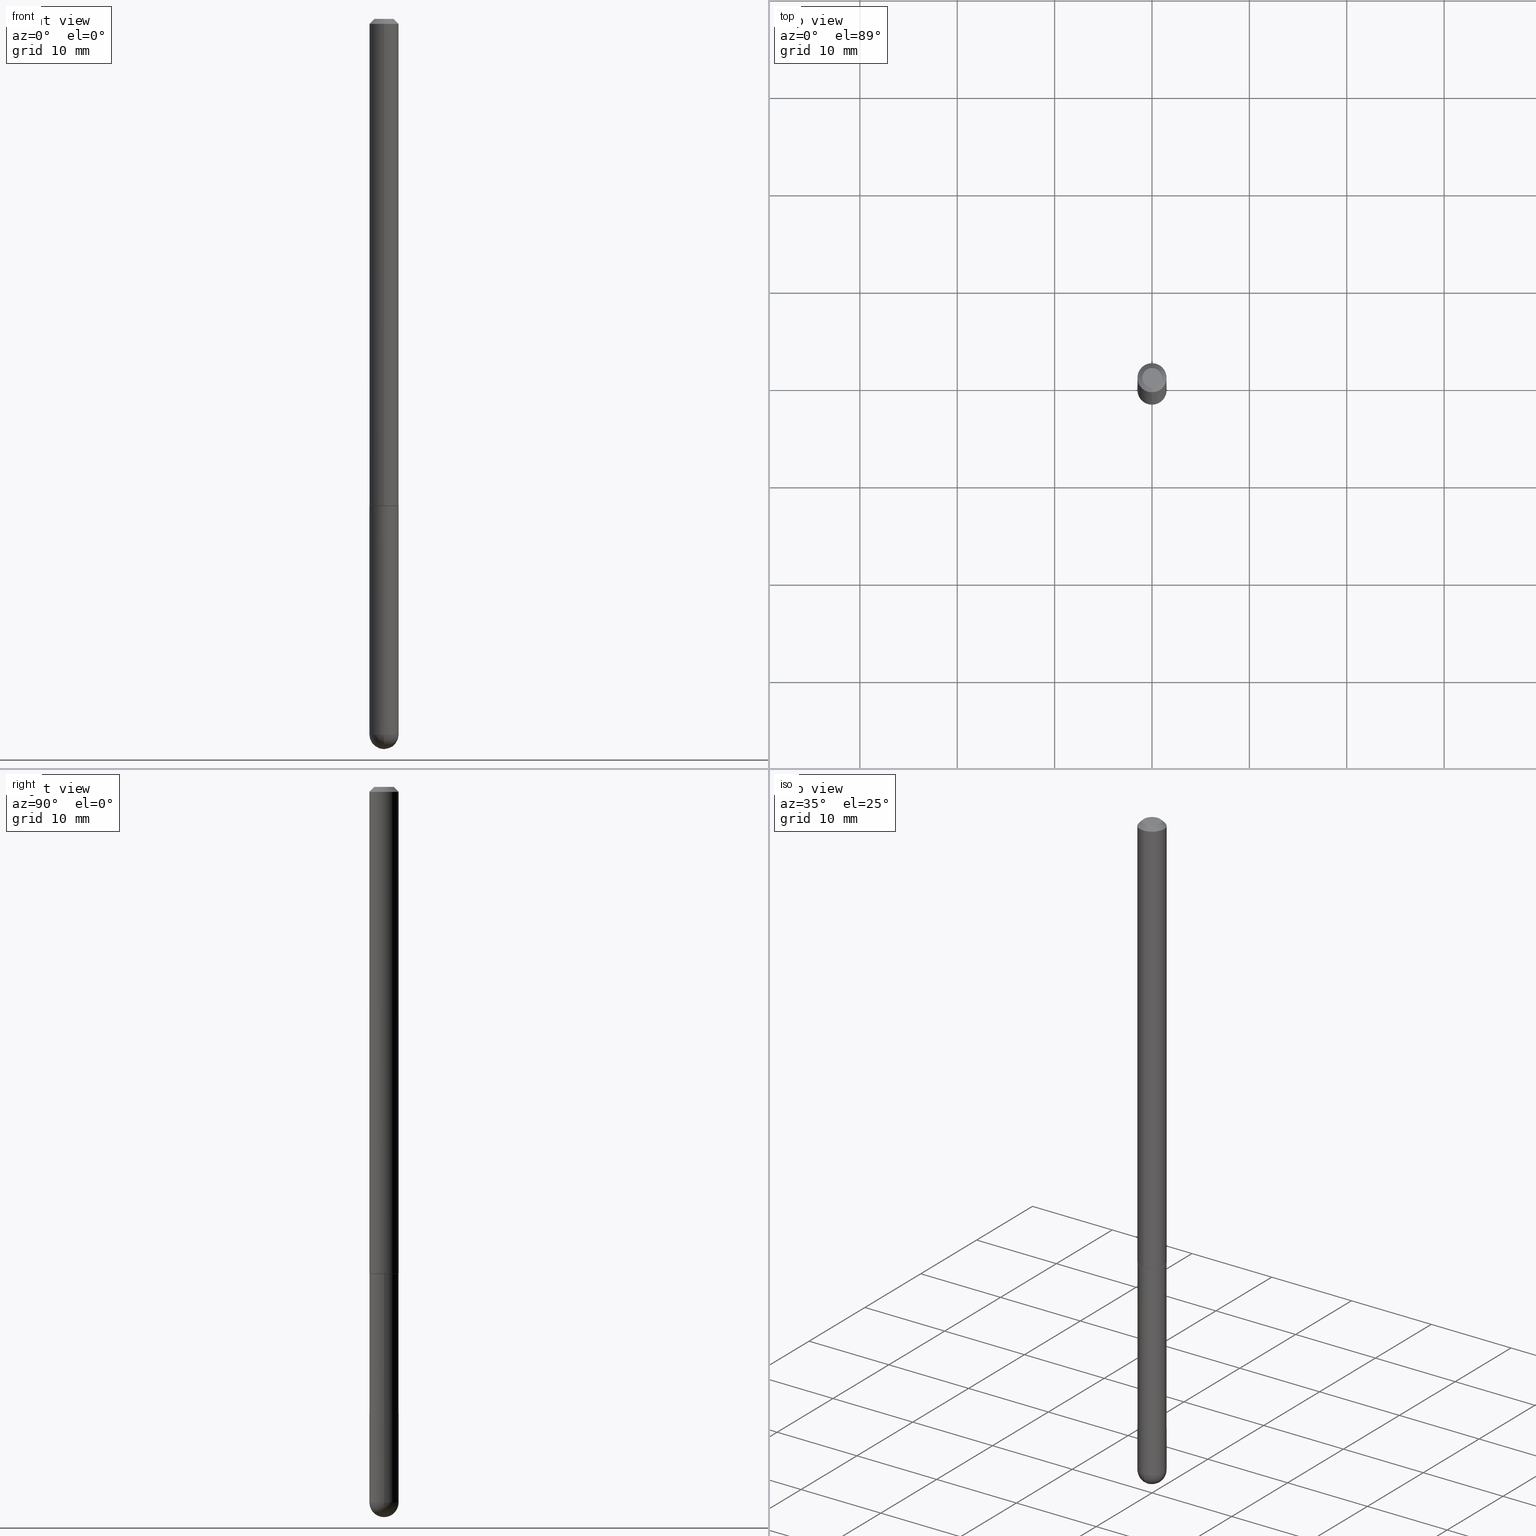
[diagram: canonical four-view strip — front | top / right | iso, engineering-drawing reading convention]
A machine part, canonical four-view strip (front | top / right | iso — engineering-drawing reading convention). The complete STEP part file that produces these views, byte-faithful:
ISO-10303-21;
HEADER;
FILE_DESCRIPTION (( 'STEP AP203' ),
    '1' );
FILE_NAME ('49609.STEP',
    '2024-04-10T12:30:11',
    ( '' ),
    ( '' ),
    'SwSTEP 2.0',
    'SolidWorks 2023',
    '' );
FILE_SCHEMA (( 'CONFIG_CONTROL_DESIGN' ));
ENDSEC;

DATA;
#1 = CC_DESIGN_PERSON_AND_ORGANIZATION_ASSIGNMENT ( #150, #154, ( #44 ) ) ;
#2 = DIRECTION ( 'NONE',  ( -2.452606242276133797E-29, 3.481260124123203654E-15, 1.000000000000000000 ) ) ;
#3 = ORIENTED_EDGE ( 'NONE', *, *, #236, .F. ) ;
#4 = VERTEX_POINT ( 'NONE', #366 ) ;
#5 = ORIENTED_EDGE ( 'NONE', *, *, #17, .F. ) ;
#6 = APPROVAL ( #58, 'UNSPECIFIED' ) ;
#7 = VERTEX_POINT ( 'NONE', #138 ) ;
#8 = CARTESIAN_POINT ( 'NONE',  ( 0.05905000000000001914, -4.123439461173741806E-16, 2.879382386107500921E-30 ) ) ;
#9 = CARTESIAN_POINT ( 'NONE',  ( -4.051124067684085231E-16, -0.05905000000000008159, -0.01999999999999986511 ) ) ;
#10 = EDGE_LOOP ( 'NONE', ( #397, #32, #3, #331 ) ) ;
#11 = PRODUCT ( '49609', '49609', '', ( #110 ) ) ;
#12 = EDGE_CURVE ( 'NONE', #98, #257, #391, .T. ) ;
#13 = CARTESIAN_POINT ( 'NONE',  ( 4.160227717875875531E-16, 0.05804999999999314181, -1.968500000000000139 ) ) ;
#14 = AXIS2_PLACEMENT_3D ( 'NONE', #289, #96, #93 ) ;
#15 = EDGE_LOOP ( 'NONE', ( #319, #223, #208, #174, #359 ) ) ;
#16 = CYLINDRICAL_SURFACE ( 'NONE', #264, 0.05905000000000001914 ) ;
#17 = EDGE_CURVE ( 'NONE', #402, #337, #378, .T. ) ;
#18 = AXIS2_PLACEMENT_3D ( 'NONE', #158, #252, #136 ) ;
#19 = EDGE_LOOP ( 'NONE', ( #335, #200, #373, #134 ) ) ;
#20 = CARTESIAN_POINT ( 'NONE',  ( 4.905212484552284025E-31, -6.962520248246431022E-17, -0.02000000000000006981 ) ) ;
#21 = PRODUCT_DEFINITION ( 'UNKNOWN', '', #44, #355 ) ;
#22 = ORIENTED_EDGE ( 'NONE', *, *, #192, .F. ) ;
#23 = DATE_TIME_ROLE ( 'creation_date' ) ;
#24 = FACE_OUTER_BOUND ( 'NONE', #193, .T. ) ;
#25 = PERSON_AND_ORGANIZATION ( #84, #334 ) ;
#26 = SPHERICAL_SURFACE ( 'NONE', #258, 0.05905000000000025506 ) ;
#27 = ADVANCED_FACE ( 'NONE', ( #188 ), #26, .T. ) ;
#28 =( NAMED_UNIT ( * ) PLANE_ANGLE_UNIT ( ) SI_UNIT ( $, .RADIAN. ) );
#29 = DIRECTION ( 'NONE',  ( 6.982962677686266711E-15, 1.000000000000000000, 0.000000000000000000 ) ) ;
#30 = APPROVAL_DATE_TIME ( #114, #164 ) ;
#31 = DIRECTION ( 'NONE',  ( 1.000000000000000000, -6.982962677686266711E-15, 4.876176775795935793E-29 ) ) ;
#32 = ORIENTED_EDGE ( 'NONE', *, *, #354, .T. ) ;
#33 = CIRCLE ( 'NONE', #56, 0.05905000000000001914 ) ;
#34 = DIRECTION ( 'NONE',  ( -6.982962677686265922E-15, -1.000000000000000000, 4.706025828879006993E-15 ) ) ;
#35 = EDGE_LOOP ( 'NONE', ( #22, #210, #104, #393 ) ) ;
#36 = EDGE_LOOP ( 'NONE', ( #184, #121 ) ) ;
#37 = EDGE_CURVE ( 'NONE', #291, #337, #111, .T. ) ;
#38 = DIRECTION ( 'NONE',  ( 2.438088387897960049E-29, -3.491481338843145188E-15, -1.000000000000000000 ) ) ;
#39 = DIRECTION ( 'NONE',  ( -6.982962677686265922E-15, -1.000000000000000000, 4.706025828879006993E-15 ) ) ;
#40 = ORIENTED_EDGE ( 'NONE', *, *, #261, .T. ) ;
#41 = AXIS2_PLACEMENT_3D ( 'NONE', #332, #199, #103 ) ;
#42 = DIRECTION ( 'NONE',  ( 5.024295867788404755E-15, 0.7071067811865981989, 0.7071067811864968355 ) ) ;
#43 = ORIENTED_EDGE ( 'NONE', *, *, #203, .F. ) ;
#44 = PRODUCT_DEFINITION_FORMATION_WITH_SPECIFIED_SOURCE ( 'ANY', '', #11, .NOT_KNOWN. ) ;
#45 = LINE ( 'NONE', #295, #207 ) ;
#46 = DIRECTION ( 'NONE',  ( -2.445468806185136597E-29, 3.491481338843145583E-15, 1.000000000000000000 ) ) ;
#47 = PLANE ( 'NONE',  #86 ) ;
#48 = ADVANCED_FACE ( 'NONE', ( #24 ), #234, .T. ) ;
#49 = CC_DESIGN_APPROVAL ( #164, ( #44 ) ) ;
#50 = ORIENTED_EDGE ( 'NONE', *, *, #64, .T. ) ;
#51 = AXIS2_PLACEMENT_3D ( 'NONE', #168, #307, #266 ) ;
#52 = AXIS2_PLACEMENT_3D ( 'NONE', #171, #294, #137 ) ;
#53 = ORIENTED_EDGE ( 'NONE', *, *, #80, .T. ) ;
#54 = PERSON_AND_ORGANIZATION ( #84, #334 ) ;
#55 = ADVANCED_FACE ( 'NONE', ( #348 ), #190, .T. ) ;
#56 = AXIS2_PLACEMENT_3D ( 'NONE', #379, #211, #221 ) ;
#57 = EDGE_CURVE ( 'NONE', #291, #201, #127, .T. ) ;
#58 = APPROVAL_STATUS ( 'not_yet_approved' ) ;
#59 = SHAPE_DEFINITION_REPRESENTATION ( #292, #218 ) ;
#60 = CIRCLE ( 'NONE', #18, 0.05905000000000001914 ) ;
#61 = CARTESIAN_POINT ( 'NONE',  ( -8.277291361087481061E-46, 1.174889138517452208E-31, 3.374896148598955375E-17 ) ) ;
#62 = EDGE_LOOP ( 'NONE', ( #43, #250, #254, #286 ) ) ;
#63 = CARTESIAN_POINT ( 'NONE',  ( 2.726846925636483731E-16, 0.03904999999999995974, -1.190687271040161693E-16 ) ) ;
#64 = EDGE_CURVE ( 'NONE', #224, #321, #77, .T. ) ;
#65 = AXIS2_PLACEMENT_3D ( 'NONE', #97, #109, #131 ) ;
#66 = CIRCLE ( 'NONE', #364, 0.05905000000000025506 ) ;
#67 = CC_DESIGN_PERSON_AND_ORGANIZATION_ASSIGNMENT ( #25, #73, ( #21 ) ) ;
#68 = CARTESIAN_POINT ( 'NONE',  ( 4.813905344975440714E-29, -6.872981015512730918E-15, -1.968499999999999694 ) ) ;
#69 = EDGE_CURVE ( 'NONE', #89, #337, #209, .T. ) ;
#70 = FACE_OUTER_BOUND ( 'NONE', #36, .T. ) ;
#71 = PERSON_AND_ORGANIZATION ( #84, #334 ) ;
#72 = ORIENTED_EDGE ( 'NONE', *, *, #236, .T. ) ;
#73 = PERSON_AND_ORGANIZATION_ROLE ( 'creator' ) ;
#74 = LOCAL_TIME ( 8, 30, 11.00000000000000000, #238 ) ;
#75 = DIRECTION ( 'NONE',  ( -6.982962677686265922E-15, -1.000000000000000000, 3.481260124123203654E-15 ) ) ;
#76 = VERTEX_POINT ( 'NONE', #237 ) ;
#77 = LINE ( 'NONE', #147, #340 ) ;
#78 = ORIENTED_EDGE ( 'NONE', *, *, #261, .F. ) ;
#79 = DIRECTION ( 'NONE',  ( -2.452606242276133797E-29, 3.481260124123203654E-15, 1.000000000000000000 ) ) ;
#80 = EDGE_CURVE ( 'NONE', #257, #98, #33, .T. ) ;
#81 = DATE_TIME_ROLE ( 'classification_date' ) ;
#82 = CONICAL_SURFACE ( 'NONE', #290, 0.05804999999999999744, 0.7853981633975165577 ) ;
#83 = EDGE_CURVE ( 'NONE', #321, #89, #356, .T. ) ;
#84 = PERSON ( 'UNSPECIFIED', 'UNSPECIFIED', 'UNSPECIFIED', ('UNSPECIFIED'), ('UNSPECIFIED'), ('UNSPECIFIED') ) ;
#85 = APPLICATION_PROTOCOL_DEFINITION ( 'international standard', 'config_control_design', 1994, #177 ) ;
#86 = AXIS2_PLACEMENT_3D ( 'NONE', #63, #166, #333 ) ;
#87 = CC_DESIGN_DATE_AND_TIME_ASSIGNMENT ( #268, #23, ( #21 ) ) ;
#88 = DIRECTION ( 'NONE',  ( -2.452606242276133797E-29, 3.481260124123203654E-15, 1.000000000000000000 ) ) ;
#89 = VERTEX_POINT ( 'NONE', #156 ) ;
#90 = CIRCLE ( 'NONE', #281, 0.03904999999999995974 ) ;
#91 = CARTESIAN_POINT ( 'NONE',  ( 0.000000000000000000, 0.000000000000000000, 0.000000000000000000 ) ) ;
#92 = EDGE_LOOP ( 'NONE', ( #274, #126 ) ) ;
#93 = DIRECTION ( 'NONE',  ( -6.982962677686265922E-15, -1.000000000000000000, 3.481260124123204048E-15 ) ) ;
#94 = EDGE_CURVE ( 'NONE', #224, #172, #108, .T. ) ;
#95 = ORIENTED_EDGE ( 'NONE', *, *, #354, .F. ) ;
#96 = DIRECTION ( 'NONE',  ( -2.452606242276133237E-29, 3.481260124123204048E-15, 1.000000000000000000 ) ) ;
#97 = CARTESIAN_POINT ( 'NONE',  ( 4.905212484552284025E-31, -6.962520248246431022E-17, -0.02000000000000006981 ) ) ;
#98 = VERTEX_POINT ( 'NONE', #133 ) ;
#99 = CIRCLE ( 'NONE', #157, 0.05905000000000020649 ) ;
#100 = AXIS2_PLACEMENT_3D ( 'NONE', #409, #270, #308 ) ;
#101 = FACE_OUTER_BOUND ( 'NONE', #376, .T. ) ;
#102 = CARTESIAN_POINT ( 'NONE',  ( 7.076575357898237682E-29, -1.010347412427735067E-14, -2.893749999999999822 ) ) ;
#103 = DIRECTION ( 'NONE',  ( 1.000000000000000000, -6.982962677686270655E-15, 0.000000000000000000 ) ) ;
#104 = ORIENTED_EDGE ( 'NONE', *, *, #37, .T. ) ;
#105 = LOCAL_TIME ( 8, 30, 11.00000000000000000, #407 ) ;
#106 = LINE ( 'NONE', #370, #180 ) ;
#107 = EDGE_CURVE ( 'NONE', #337, #402, #220, .T. ) ;
#108 = CIRCLE ( 'NONE', #135, 0.05804999999999999744 ) ;
#109 = DIRECTION ( 'NONE',  ( -2.452606242276133797E-29, 3.481260124123203654E-15, 1.000000000000000000 ) ) ;
#110 = MECHANICAL_CONTEXT ( 'NONE', #197, 'mechanical' ) ;
#111 = LINE ( 'NONE', #214, #112 ) ;
#112 = VECTOR ( 'NONE', #303, 39.37007874015748143 ) ;
#113 = EDGE_CURVE ( 'NONE', #185, #260, #235, .T. ) ;
#114 = DATE_AND_TIME ( #275, #344 ) ;
#115 = DIRECTION ( 'NONE',  ( -1.000000000000000000, 7.105427357601001070E-15, -4.926315508542082329E-29 ) ) ;
#116 = APPROVAL_ROLE ( '' ) ;
#117 = COORDINATED_UNIVERSAL_TIME_OFFSET ( 5, 0, .BEHIND. ) ;
#118 = CONICAL_SURFACE ( 'NONE', #363, 0.05804999999999999744, 0.7853981633975165577 ) ;
#119 = AXIS2_PLACEMENT_3D ( 'NONE', #212, #272, #276 ) ;
#120 = MANIFOLD_SOLID_BREP ( 'Body-Move/Copy2[1]', #226 ) ;
#121 = ORIENTED_EDGE ( 'NONE', *, *, #203, .T. ) ;
#122 = DIRECTION ( 'NONE',  ( -6.982962677686265922E-15, -1.000000000000000000, 4.706025828879006993E-15 ) ) ;
#123 = ORIENTED_EDGE ( 'NONE', *, *, #143, .F. ) ;
#124 = CC_DESIGN_SECURITY_CLASSIFICATION ( #196, ( #44 ) ) ;
#125 = ORIENTED_EDGE ( 'NONE', *, *, #288, .T. ) ;
#126 = ORIENTED_EDGE ( 'NONE', *, *, #381, .F. ) ;
#127 = CIRCLE ( 'NONE', #372, 0.03904999999999995974 ) ;
#128 = EDGE_CURVE ( 'NONE', #4, #185, #215, .T. ) ;
#129 = CARTESIAN_POINT ( 'NONE',  ( 4.827955387920569283E-29, -6.852860554336525173E-15, -1.968499999999999694 ) ) ;
#130 = CARTESIAN_POINT ( 'NONE',  ( -3.365074267906932410E-16, -0.03904999999999995974, 1.696921693330005092E-16 ) ) ;
#131 = DIRECTION ( 'NONE',  ( -6.982962677686265922E-15, -1.000000000000000000, 3.469747663417776213E-15 ) ) ;
#132 = CC_DESIGN_PERSON_AND_ORGANIZATION_ASSIGNMENT ( #347, #280, ( #44 ) ) ;
#133 = CARTESIAN_POINT ( 'NONE',  ( 0.05905000000000001914, -7.285324961630105839E-15, -1.968499999999999694 ) ) ;
#134 = ORIENTED_EDGE ( 'NONE', *, *, #64, .F. ) ;
#135 = AXIS2_PLACEMENT_3D ( 'NONE', #247, #323, #39 ) ;
#136 = DIRECTION ( 'NONE',  ( 1.000000000000000000, -6.982962677686270655E-15, 0.000000000000000000 ) ) ;
#137 = DIRECTION ( 'NONE',  ( 6.982962677686265922E-15, 1.000000000000000000, -3.469747663417776213E-15 ) ) ;
#138 = CARTESIAN_POINT ( 'NONE',  ( 6.892385391458386628E-29, -1.078021269580160693E-14, -2.952799999999999869 ) ) ;
#139 = PRODUCT_RELATED_PRODUCT_CATEGORY ( 'detail', '', ( #11 ) ) ;
#140 = FACE_OUTER_BOUND ( 'NONE', #92, .T. ) ;
#141 = APPLICATION_PROTOCOL_DEFINITION ( 'international standard', 'config_control_design', 1994, #197 ) ;
#142 = DIRECTION ( 'NONE',  ( -2.452606242276133797E-29, 3.481260124123203654E-15, 1.000000000000000000 ) ) ;
#143 = EDGE_CURVE ( 'NONE', #76, #257, #45, .T. ) ;
#144 = VECTOR ( 'NONE', #42, 39.37007874015748143 ) ;
#145 = CARTESIAN_POINT ( 'NONE',  ( 6.745455579984352556E-29, -1.057765649241740097E-14, -2.893749999999999822 ) ) ;
#146 = DIRECTION ( 'NONE',  ( 2.452606242276133797E-29, -3.481260124123203654E-15, -1.000000000000000000 ) ) ;
#147 = CARTESIAN_POINT ( 'NONE',  ( -4.053609834396394049E-16, -0.05805000000000685306, -1.968499999999999472 ) ) ;
#148 = CLOSED_SHELL ( 'NONE', ( #390, #325, #318, #55, #241, #243, #161, #160 ) ) ;
#149 = COORDINATED_UNIVERSAL_TIME_OFFSET ( 5, 0, .BEHIND. ) ;
#150 = PERSON_AND_ORGANIZATION ( #84, #334 ) ;
#151 = CARTESIAN_POINT ( 'NONE',  ( 6.745455579984352556E-29, -1.057765649241740097E-14, -2.893749999999999822 ) ) ;
#152 = LOCAL_TIME ( 8, 30, 11.00000000000000000, #179 ) ;
#153 = FACE_OUTER_BOUND ( 'NONE', #296, .T. ) ;
#154 = PERSON_AND_ORGANIZATION_ROLE ( 'design_supplier' ) ;
#155 = CARTESIAN_POINT ( 'NONE',  ( 4.827955387920569283E-29, -6.852860554336525173E-15, -1.968499999999999694 ) ) ;
#156 = CARTESIAN_POINT ( 'NONE',  ( 4.195754854663646379E-16, 0.05904999999999335780, -1.967500000000000027 ) ) ;
#157 = AXIS2_PLACEMENT_3D ( 'NONE', #198, #165, #329 ) ;
#158 = CARTESIAN_POINT ( 'NONE',  ( 7.076575357898237682E-29, -1.010347412427735067E-14, -2.893749999999999822 ) ) ;
#159 = LOCAL_TIME ( 8, 30, 11.00000000000000000, #117 ) ;
#160 = ADVANCED_FACE ( 'NONE', ( #70 ), #47, .F. ) ;
#161 = ADVANCED_FACE ( 'NONE', ( #140 ), #305, .F. ) ;
#162 = FACE_OUTER_BOUND ( 'NONE', #62, .T. ) ;
#163 = DIRECTION ( 'NONE',  ( -4.851104656540958753E-15, -0.7071067811865492381, -0.7071067811865457964 ) ) ;
#164 = APPROVAL ( #316, 'UNSPECIFIED' ) ;
#165 = DIRECTION ( 'NONE',  ( -2.452606242276133797E-29, 3.481260124123203654E-15, 1.000000000000000000 ) ) ;
#166 = DIRECTION ( 'NONE',  ( 2.452606242276133237E-29, -3.481260124123204048E-15, -1.000000000000000000 ) ) ;
#167 = LINE ( 'NONE', #8, #173 ) ;
#168 = CARTESIAN_POINT ( 'NONE',  ( 7.076575357898237682E-29, -1.010347412427735067E-14, -2.893749999999999822 ) ) ;
#169 = AXIS2_PLACEMENT_3D ( 'NONE', #187, #336, #405 ) ;
#170 = CARTESIAN_POINT ( 'NONE',  ( 4.124700581087863588E-16, 0.05804999999999314181, -1.968500000000000139 ) ) ;
#171 = CARTESIAN_POINT ( 'NONE',  ( 4.905212484552284025E-31, -6.962520248246431022E-17, -0.02000000000000006981 ) ) ;
#172 = VERTEX_POINT ( 'NONE', #13 ) ;
#173 = VECTOR ( 'NONE', #256, 39.37007874015748143 ) ;
#174 = ORIENTED_EDGE ( 'NONE', *, *, #288, .F. ) ;
#175 = EDGE_LOOP ( 'NONE', ( #349, #251, #50, #229 ) ) ;
#176 = EDGE_CURVE ( 'NONE', #172, #89, #361, .T. ) ;
#177 = APPLICATION_CONTEXT ( 'configuration controlled 3d designs of mechanical parts and assemblies' ) ;
#178 = CARTESIAN_POINT ( 'NONE',  ( 0.000000000000000000, 0.000000000000000000, 0.000000000000000000 ) ) ;
#179 = COORDINATED_UNIVERSAL_TIME_OFFSET ( 5, 0, .BEHIND. ) ;
#180 = VECTOR ( 'NONE', #285, 39.37007874015748143 ) ;
#181 = AXIS2_PLACEMENT_3D ( 'NONE', #151, #384, #29 ) ;
#182 =( CONVERSION_BASED_UNIT ( 'INCH', #273 ) LENGTH_UNIT ( ) NAMED_UNIT ( #225 ) );
#183 = DIRECTION ( 'NONE',  ( 6.982962677686265922E-15, 1.000000000000000000, 0.000000000000000000 ) ) ;
#184 = ORIENTED_EDGE ( 'NONE', *, *, #57, .T. ) ;
#185 = VERTEX_POINT ( 'NONE', #320 ) ;
#186 = PERSON_AND_ORGANIZATION ( #84, #334 ) ;
#187 = CARTESIAN_POINT ( 'NONE',  ( 0.000000000000000000, 0.000000000000000000, 0.000000000000000000 ) ) ;
#188 = FACE_OUTER_BOUND ( 'NONE', #10, .T. ) ;
#189 = DIRECTION ( 'NONE',  ( -2.445468806185136597E-29, 3.491481338843145583E-15, 1.000000000000000000 ) ) ;
#190 = CONICAL_SURFACE ( 'NONE', #326, 0.05905000000000001914, 0.7853981633974472798 ) ;
#191 = CYLINDRICAL_SURFACE ( 'NONE', #119, 0.05905000000000010935 ) ;
#192 = EDGE_CURVE ( 'NONE', #201, #402, #362, .T. ) ;
#193 = EDGE_LOOP ( 'NONE', ( #95, #310, #343, #352 ) ) ;
#194 = EDGE_LOOP ( 'NONE', ( #324, #222, #40, #389 ) ) ;
#195 = CIRCLE ( 'NONE', #248, 0.05804999999999999744 ) ;
#196 = SECURITY_CLASSIFICATION ( '', '', #353 ) ;
#197 = APPLICATION_CONTEXT ( 'configuration controlled 3d designs of mechanical parts and assemblies' ) ;
#198 = CARTESIAN_POINT ( 'NONE',  ( 4.825502781678292621E-29, -6.849379294212400691E-15, -1.967499999999999805 ) ) ;
#199 = DIRECTION ( 'NONE',  ( -2.445468806185136597E-29, 3.491481338843145583E-15, 1.000000000000000000 ) ) ;
#200 = ORIENTED_EDGE ( 'NONE', *, *, #176, .T. ) ;
#201 = VERTEX_POINT ( 'NONE', #130 ) ;
#202 = CALENDAR_DATE ( 2024, 10, 4 ) ;
#203 = EDGE_CURVE ( 'NONE', #201, #291, #90, .T. ) ;
#204 = ORIENTED_EDGE ( 'NONE', *, *, #12, .T. ) ;
#205 = CARTESIAN_POINT ( 'NONE',  ( 6.745455579984352556E-29, -1.057765649241740097E-14, -2.893749999999999822 ) ) ;
#206 = FACE_OUTER_BOUND ( 'NONE', #175, .T. ) ;
#207 = VECTOR ( 'NONE', #369, 39.37007874015748143 ) ;
#208 = ORIENTED_EDGE ( 'NONE', *, *, #12, .F. ) ;
#209 = LINE ( 'NONE', #342, #231 ) ;
#210 = ORIENTED_EDGE ( 'NONE', *, *, #57, .F. ) ;
#211 = DIRECTION ( 'NONE',  ( -2.445468806185136597E-29, 3.491481338843145583E-15, 1.000000000000000000 ) ) ;
#212 = CARTESIAN_POINT ( 'NONE',  ( 0.000000000000000000, 0.000000000000000000, 0.000000000000000000 ) ) ;
#213 = PERSON_AND_ORGANIZATION ( #84, #334 ) ;
#214 = CARTESIAN_POINT ( 'NONE',  ( 4.123439461173745750E-16, 0.05904999999999994975, -0.02000000000000027450 ) ) ;
#215 = CIRCLE ( 'NONE', #41, 0.05905000000000001914 ) ;
#216 = APPROVAL_ROLE ( '' ) ;
#217 = ADVANCED_FACE ( 'NONE', ( #101 ), #228, .F. ) ;
#218 = ADVANCED_BREP_SHAPE_REPRESENTATION ( '49609', ( #120, #265, #169 ), #368 ) ;
#219 = DIRECTION ( 'NONE',  ( -6.982962677686265922E-15, -1.000000000000000000, 4.626330217890353559E-15 ) ) ;
#220 = CIRCLE ( 'NONE', #65, 0.05905000000000001914 ) ;
#221 = DIRECTION ( 'NONE',  ( 1.000000000000000000, -6.982962677686270655E-15, 0.000000000000000000 ) ) ;
#222 = ORIENTED_EDGE ( 'NONE', *, *, #302, .T. ) ;
#223 = ORIENTED_EDGE ( 'NONE', *, *, #143, .T. ) ;
#224 = VERTEX_POINT ( 'NONE', #249 ) ;
#225 = DIMENSIONAL_EXPONENTS ( 1.000000000000000000, 0.000000000000000000, 0.000000000000000000, 0.000000000000000000, 0.000000000000000000, 0.000000000000000000, 0.000000000000000000 ) ;
#226 = CLOSED_SHELL ( 'NONE', ( #375, #27, #48, #217, #374 ) ) ;
#227 = APPROVAL ( #277, 'UNSPECIFIED' ) ;
#228 = PLANE ( 'NONE',  #385 ) ;
#229 = ORIENTED_EDGE ( 'NONE', *, *, #302, .F. ) ;
#230 = CARTESIAN_POINT ( 'NONE',  ( 4.123439461174440441E-16, 0.05904999999998979815, -2.893749999999999822 ) ) ;
#231 = VECTOR ( 'NONE', #404, 39.37007874015748143 ) ;
#232 = DIRECTION ( 'NONE',  ( -6.982962677686265922E-15, -1.000000000000000000, 4.706025828879006993E-15 ) ) ;
#233 = CC_DESIGN_APPROVAL ( #6, ( #21 ) ) ;
#234 = SPHERICAL_SURFACE ( 'NONE', #312, 0.05905000000000025506 ) ;
#235 = CIRCLE ( 'NONE', #350, 0.05905000000000001914 ) ;
#236 = EDGE_CURVE ( 'NONE', #76, #4, #60, .T. ) ;
#237 = CARTESIAN_POINT ( 'NONE',  ( -0.05905000000000001914, -8.068652084428701697E-15, -2.893749999999999822 ) ) ;
#238 = COORDINATED_UNIVERSAL_TIME_OFFSET ( 5, 0, .BEHIND. ) ;
#239 = DIRECTION ( 'NONE',  ( -7.105427357601001070E-15, -1.000000000000000000, 0.000000000000000000 ) ) ;
#240 =( LENGTH_UNIT ( ) NAMED_UNIT ( * ) SI_UNIT ( $, .METRE. ) );
#241 = ADVANCED_FACE ( 'NONE', ( #259 ), #392, .T. ) ;
#242 =( NAMED_UNIT ( * ) SI_UNIT ( $, .STERADIAN. ) SOLID_ANGLE_UNIT ( ) );
#243 = ADVANCED_FACE ( 'NONE', ( #206 ), #118, .T. ) ;
#244 = AXIS2_PLACEMENT_3D ( 'NONE', #345, #284, #309 ) ;
#245 = CALENDAR_DATE ( 2024, 10, 4 ) ;
#246 = APPROVAL_DATE_TIME ( #408, #6 ) ;
#247 = CARTESIAN_POINT ( 'NONE',  ( 4.827955387920569283E-29, -6.852860554336525173E-15, -1.968499999999999694 ) ) ;
#248 = AXIS2_PLACEMENT_3D ( 'NONE', #155, #282, #34 ) ;
#249 = CARTESIAN_POINT ( 'NONE',  ( -4.053609834396394049E-16, -0.05805000000000685306, -1.968499999999999472 ) ) ;
#250 = ORIENTED_EDGE ( 'NONE', *, *, #192, .T. ) ;
#251 = ORIENTED_EDGE ( 'NONE', *, *, #381, .T. ) ;
#252 = DIRECTION ( 'NONE',  ( -2.445468806185136597E-29, 3.491481338843145583E-15, 1.000000000000000000 ) ) ;
#253 = ORIENTED_EDGE ( 'NONE', *, *, #69, .T. ) ;
#254 = ORIENTED_EDGE ( 'NONE', *, *, #17, .T. ) ;
#255 = DIRECTION ( 'NONE',  ( -6.982962677686265133E-15, -1.000000000000000000, 3.481260124123202865E-15 ) ) ;
#256 = DIRECTION ( 'NONE',  ( -2.445468806185136877E-29, 3.491481338843145188E-15, 1.000000000000000000 ) ) ;
#257 = VERTEX_POINT ( 'NONE', #306 ) ;
#258 = AXIS2_PLACEMENT_3D ( 'NONE', #145, #401, #279 ) ;
#259 = FACE_OUTER_BOUND ( 'NONE', #194, .T. ) ;
#260 = VERTEX_POINT ( 'NONE', #230 ) ;
#261 = EDGE_CURVE ( 'NONE', #321, #402, #106, .T. ) ;
#262 = DIRECTION ( 'NONE',  ( -2.452606242276133797E-29, 3.481260124123203654E-15, 1.000000000000000000 ) ) ;
#263 = EDGE_CURVE ( 'NONE', #260, #76, #410, .T. ) ;
#264 = AXIS2_PLACEMENT_3D ( 'NONE', #91, #189, #31 ) ;
#265 = MANIFOLD_SOLID_BREP ( 'Body-Move/Copy2[2]', #148 ) ;
#266 = DIRECTION ( 'NONE',  ( 1.000000000000000000, -6.982962677686270655E-15, 0.000000000000000000 ) ) ;
#267 = EDGE_LOOP ( 'NONE', ( #283, #253, #5, #78 ) ) ;
#268 = DATE_AND_TIME ( #311, #152 ) ;
#269 = DIRECTION ( 'NONE',  ( 6.982962677686265922E-15, 1.000000000000000000, -3.469747663417776213E-15 ) ) ;
#270 = DIRECTION ( 'NONE',  ( -2.445468806185136597E-29, 3.491481338843145583E-15, 1.000000000000000000 ) ) ;
#271 = DIRECTION ( 'NONE',  ( -4.937700262164884886E-15, -0.7071067811865933139, 0.7071067811865017205 ) ) ;
#272 = DIRECTION ( 'NONE',  ( -2.452606242276133797E-29, 3.481260124123203654E-15, 1.000000000000000000 ) ) ;
#273 = LENGTH_MEASURE_WITH_UNIT ( LENGTH_MEASURE( 0.02539999999999999897 ), #240 );
#274 = ORIENTED_EDGE ( 'NONE', *, *, #94, .F. ) ;
#275 = CALENDAR_DATE ( 2024, 10, 4 ) ;
#276 = DIRECTION ( 'NONE',  ( -6.982962677686265922E-15, -1.000000000000000000, 3.481260124123203654E-15 ) ) ;
#277 = APPROVAL_STATUS ( 'not_yet_approved' ) ;
#278 = FACE_OUTER_BOUND ( 'NONE', #15, .T. ) ;
#279 = DIRECTION ( 'NONE',  ( 6.982962677686265922E-15, 1.000000000000000000, 0.000000000000000000 ) ) ;
#280 = PERSON_AND_ORGANIZATION_ROLE ( 'creator' ) ;
#281 = AXIS2_PLACEMENT_3D ( 'NONE', #61, #327, #255 ) ;
#282 = DIRECTION ( 'NONE',  ( -2.452606242276133797E-29, 3.481260124123203654E-15, 1.000000000000000000 ) ) ;
#283 = ORIENTED_EDGE ( 'NONE', *, *, #83, .T. ) ;
#284 = DIRECTION ( 'NONE',  ( -2.452606242276133797E-29, 3.481260124123203654E-15, 1.000000000000000000 ) ) ;
#285 = DIRECTION ( 'NONE',  ( -2.452606242276134078E-29, 3.481260124123204048E-15, 1.000000000000000000 ) ) ;
#286 = ORIENTED_EDGE ( 'NONE', *, *, #37, .F. ) ;
#287 = AXIS2_PLACEMENT_3D ( 'NONE', #68, #46, #330 ) ;
#288 = EDGE_CURVE ( 'NONE', #185, #98, #167, .T. ) ;
#289 = CARTESIAN_POINT ( 'NONE',  ( 4.827955387920569283E-29, -6.852860554336525173E-15, -1.968499999999999694 ) ) ;
#290 = AXIS2_PLACEMENT_3D ( 'NONE', #129, #2, #122 ) ;
#291 = VERTEX_POINT ( 'NONE', #365 ) ;
#292 = PRODUCT_DEFINITION_SHAPE ( 'NONE', 'NONE',  #21 ) ;
#293 = DIRECTION ( 'NONE',  ( -1.000000000000000000, 6.982962677686265922E-15, -4.876176775795935793E-29 ) ) ;
#294 = DIRECTION ( 'NONE',  ( 2.452606242276133797E-29, -3.481260124123203654E-15, -1.000000000000000000 ) ) ;
#295 = CARTESIAN_POINT ( 'NONE',  ( -0.05905000000000001914, 4.195754854663392958E-16, -2.904631170795522943E-30 ) ) ;
#296 = EDGE_LOOP ( 'NONE', ( #123, #72, #328, #125, #299 ) ) ;
#297 = CC_DESIGN_DATE_AND_TIME_ASSIGNMENT ( #380, #81, ( #196 ) ) ;
#298 = APPROVAL_PERSON_ORGANIZATION ( #213, #6, #216 ) ;
#299 = ORIENTED_EDGE ( 'NONE', *, *, #80, .F. ) ;
#300 = PERSON_AND_ORGANIZATION ( #84, #334 ) ;
#301 = AXIS2_PLACEMENT_3D ( 'NONE', #178, #262, #75 ) ;
#302 = EDGE_CURVE ( 'NONE', #89, #321, #99, .T. ) ;
#303 = DIRECTION ( 'NONE',  ( 4.937700262164542520E-15, 0.7071067811865443531, -0.7071067811865506814 ) ) ;
#304 = CYLINDRICAL_SURFACE ( 'NONE', #100, 0.05905000000000001914 ) ;
#305 = PLANE ( 'NONE',  #14 ) ;
#306 = CARTESIAN_POINT ( 'NONE',  ( -0.05905000000000001914, -8.068652084428701697E-15, -1.968499999999999694 ) ) ;
#307 = DIRECTION ( 'NONE',  ( -2.445468806185136597E-29, 3.491481338843145583E-15, 1.000000000000000000 ) ) ;
#308 = DIRECTION ( 'NONE',  ( 1.000000000000000000, -6.982962677686266711E-15, 4.876176775795935793E-29 ) ) ;
#309 = DIRECTION ( 'NONE',  ( -6.982962677686265922E-15, -1.000000000000000000, 3.469747663417776213E-15 ) ) ;
#310 = ORIENTED_EDGE ( 'NONE', *, *, #360, .T. ) ;
#311 = CALENDAR_DATE ( 2024, 10, 4 ) ;
#312 = AXIS2_PLACEMENT_3D ( 'NONE', #205, #338, #183 ) ;
#313 = APPROVAL_ROLE ( '' ) ;
#314 = CC_DESIGN_PERSON_AND_ORGANIZATION_ASSIGNMENT ( #186, #383, ( #11 ) ) ;
#315 = DATE_AND_TIME ( #245, #159 ) ;
#316 = APPROVAL_STATUS ( 'not_yet_approved' ) ;
#317 = VECTOR ( 'NONE', #163, 39.37007874015748143 ) ;
#318 = ADVANCED_FACE ( 'NONE', ( #162 ), #411, .T. ) ;
#319 = ORIENTED_EDGE ( 'NONE', *, *, #263, .T. ) ;
#320 = CARTESIAN_POINT ( 'NONE',  ( 0.05905000000000001914, -8.900571516012416899E-15, -2.893749999999999822 ) ) ;
#321 = VERTEX_POINT ( 'NONE', #396 ) ;
#322 = CARTESIAN_POINT ( 'NONE',  ( 4.123439461174222518E-16, 0.05904999999999314270, -1.968500000000000139 ) ) ;
#323 = DIRECTION ( 'NONE',  ( -2.452606242276133797E-29, 3.481260124123203654E-15, 1.000000000000000000 ) ) ;
#324 = ORIENTED_EDGE ( 'NONE', *, *, #69, .F. ) ;
#325 = ADVANCED_FACE ( 'NONE', ( #357 ), #191, .T. ) ;
#326 = AXIS2_PLACEMENT_3D ( 'NONE', #20, #146, #269 ) ;
#327 = DIRECTION ( 'NONE',  ( -2.452606242276133797E-29, 3.481260124123203654E-15, 1.000000000000000000 ) ) ;
#328 = ORIENTED_EDGE ( 'NONE', *, *, #128, .T. ) ;
#329 = DIRECTION ( 'NONE',  ( -6.982962677686265922E-15, -1.000000000000000000, 4.626330217890353559E-15 ) ) ;
#330 = DIRECTION ( 'NONE',  ( 1.000000000000000000, -6.982962677686270655E-15, 0.000000000000000000 ) ) ;
#331 = ORIENTED_EDGE ( 'NONE', *, *, #263, .F. ) ;
#332 = CARTESIAN_POINT ( 'NONE',  ( 7.076575357898237682E-29, -1.010347412427735067E-14, -2.893749999999999822 ) ) ;
#333 = DIRECTION ( 'NONE',  ( 6.982962677686265922E-15, 1.000000000000000000, -3.481260124123204048E-15 ) ) ;
#334 = ORGANIZATION ( 'UNSPECIFIED', 'UNSPECIFIED', '' ) ;
#335 = ORIENTED_EDGE ( 'NONE', *, *, #94, .T. ) ;
#336 = DIRECTION ( 'NONE',  ( 0.000000000000000000, 0.000000000000000000, 1.000000000000000000 ) ) ;
#337 = VERTEX_POINT ( 'NONE', #406 ) ;
#338 = DIRECTION ( 'NONE',  ( -1.000000000000000000, 6.982962677686265922E-15, -4.883557194083112340E-29 ) ) ;
#339 = CARTESIAN_POINT ( 'NONE',  ( 6.745455579984352556E-29, -1.057765649241740097E-14, -2.893749999999999822 ) ) ;
#340 = VECTOR ( 'NONE', #271, 39.37007874015748143 ) ;
#341 = CIRCLE ( 'NONE', #181, 0.05905000000000025506 ) ;
#342 = CARTESIAN_POINT ( 'NONE',  ( 4.195754854663398874E-16, 0.05905000000000010935, -2.055684103294755676E-16 ) ) ;
#343 = ORIENTED_EDGE ( 'NONE', *, *, #113, .F. ) ;
#344 = LOCAL_TIME ( 8, 30, 11.00000000000000000, #149 ) ;
#345 = CARTESIAN_POINT ( 'NONE',  ( 4.905212484552284025E-31, -6.962520248246431022E-17, -0.02000000000000006981 ) ) ;
#346 = UNCERTAINTY_MEASURE_WITH_UNIT (LENGTH_MEASURE( 1.000000000000000082E-05 ), #182, 'distance_accuracy_value', 'NONE');
#347 = PERSON_AND_ORGANIZATION ( #84, #334 ) ;
#348 = FACE_OUTER_BOUND ( 'NONE', #35, .T. ) ;
#349 = ORIENTED_EDGE ( 'NONE', *, *, #176, .F. ) ;
#350 = AXIS2_PLACEMENT_3D ( 'NONE', #102, #400, #371 ) ;
#351 = PERSON_AND_ORGANIZATION_ROLE ( 'classification_officer' ) ;
#352 = ORIENTED_EDGE ( 'NONE', *, *, #128, .F. ) ;
#353 = SECURITY_CLASSIFICATION_LEVEL ( 'unclassified' ) ;
#354 = EDGE_CURVE ( 'NONE', #7, #4, #66, .T. ) ;
#355 = DESIGN_CONTEXT ( 'detailed design', #177, 'design' ) ;
#356 = CIRCLE ( 'NONE', #395, 0.05905000000000020649 ) ;
#357 = FACE_OUTER_BOUND ( 'NONE', #267, .T. ) ;
#358 = FACE_OUTER_BOUND ( 'NONE', #19, .T. ) ;
#359 = ORIENTED_EDGE ( 'NONE', *, *, #113, .T. ) ;
#360 = EDGE_CURVE ( 'NONE', #7, #260, #341, .T. ) ;
#361 = LINE ( 'NONE', #170, #144 ) ;
#362 = LINE ( 'NONE', #9, #317 ) ;
#363 = AXIS2_PLACEMENT_3D ( 'NONE', #398, #142, #232 ) ;
#364 = AXIS2_PLACEMENT_3D ( 'NONE', #339, #115, #239 ) ;
#365 = CARTESIAN_POINT ( 'NONE',  ( 3.425143193405115234E-16, 0.03904999999999995974, -1.021942463610213893E-16 ) ) ;
#366 = CARTESIAN_POINT ( 'NONE',  ( -4.195754854662709114E-16, -0.05905000000001047605, -2.893749999999999822 ) ) ;
#367 = CC_DESIGN_PERSON_AND_ORGANIZATION_ASSIGNMENT ( #71, #351, ( #196 ) ) ;
#368 =( GEOMETRIC_REPRESENTATION_CONTEXT ( 3 ) GLOBAL_UNCERTAINTY_ASSIGNED_CONTEXT ( ( #346 ) ) GLOBAL_UNIT_ASSIGNED_CONTEXT ( ( #182, #28, #242 ) ) REPRESENTATION_CONTEXT ( 'NONE', 'WORKASPACE' ) );
#369 = DIRECTION ( 'NONE',  ( -2.445468806185136877E-29, 3.491481338843145188E-15, 1.000000000000000000 ) ) ;
#370 = CARTESIAN_POINT ( 'NONE',  ( -4.123439461173747722E-16, -0.05905000000000010935, 2.055684103294755676E-16 ) ) ;
#371 = DIRECTION ( 'NONE',  ( 1.000000000000000000, -6.982962677686270655E-15, 0.000000000000000000 ) ) ;
#372 = AXIS2_PLACEMENT_3D ( 'NONE', #403, #79, #377 ) ;
#373 = ORIENTED_EDGE ( 'NONE', *, *, #83, .F. ) ;
#374 = ADVANCED_FACE ( 'NONE', ( #153 ), #304, .T. ) ;
#375 = ADVANCED_FACE ( 'NONE', ( #278 ), #16, .T. ) ;
#376 = EDGE_LOOP ( 'NONE', ( #204, #53 ) ) ;
#377 = DIRECTION ( 'NONE',  ( -6.982962677686265133E-15, -1.000000000000000000, 3.481260124123202865E-15 ) ) ;
#378 = CIRCLE ( 'NONE', #244, 0.05905000000000001914 ) ;
#379 = CARTESIAN_POINT ( 'NONE',  ( 4.813905344975440714E-29, -6.872981015512730918E-15, -1.968499999999999694 ) ) ;
#380 = DATE_AND_TIME ( #202, #74 ) ;
#381 = EDGE_CURVE ( 'NONE', #172, #224, #195, .T. ) ;
#382 = APPROVAL_PERSON_ORGANIZATION ( #300, #164, #313 ) ;
#383 = PERSON_AND_ORGANIZATION_ROLE ( 'design_owner' ) ;
#384 = DIRECTION ( 'NONE',  ( 1.000000000000000000, -6.982962677686265922E-15, 4.883557194083112340E-29 ) ) ;
#385 = AXIS2_PLACEMENT_3D ( 'NONE', #322, #38, #293 ) ;
#386 = CARTESIAN_POINT ( 'NONE',  ( -4.051124067684085231E-16, -0.05905000000000008159, -0.01999999999999986511 ) ) ;
#387 = APPROVAL_DATE_TIME ( #315, #227 ) ;
#388 = CARTESIAN_POINT ( 'NONE',  ( 4.825502781678292621E-29, -6.849379294212400691E-15, -1.967499999999999805 ) ) ;
#389 = ORIENTED_EDGE ( 'NONE', *, *, #107, .F. ) ;
#390 = ADVANCED_FACE ( 'NONE', ( #358 ), #82, .T. ) ;
#391 = CIRCLE ( 'NONE', #287, 0.05905000000000001914 ) ;
#392 = CYLINDRICAL_SURFACE ( 'NONE', #301, 0.05905000000000010935 ) ;
#393 = ORIENTED_EDGE ( 'NONE', *, *, #107, .T. ) ;
#394 = APPROVAL_PERSON_ORGANIZATION ( #54, #227, #116 ) ;
#395 = AXIS2_PLACEMENT_3D ( 'NONE', #388, #88, #219 ) ;
#396 = CARTESIAN_POINT ( 'NONE',  ( -4.123439461173271448E-16, -0.05905000000000704824, -1.967499999999999361 ) ) ;
#397 = ORIENTED_EDGE ( 'NONE', *, *, #360, .F. ) ;
#398 = CARTESIAN_POINT ( 'NONE',  ( 4.827955387920569283E-29, -6.852860554336525173E-15, -1.968499999999999694 ) ) ;
#399 = CC_DESIGN_APPROVAL ( #227, ( #196 ) ) ;
#400 = DIRECTION ( 'NONE',  ( -2.445468806185136597E-29, 3.491481338843145583E-15, 1.000000000000000000 ) ) ;
#401 = DIRECTION ( 'NONE',  ( -1.000000000000000000, 6.982962677686265922E-15, -4.883557194083112340E-29 ) ) ;
#402 = VERTEX_POINT ( 'NONE', #386 ) ;
#403 = CARTESIAN_POINT ( 'NONE',  ( -8.277291361087481061E-46, 1.174889138517452208E-31, 3.374896148598955375E-17 ) ) ;
#404 = DIRECTION ( 'NONE',  ( -2.452606242276134078E-29, 3.481260124123204048E-15, 1.000000000000000000 ) ) ;
#405 = DIRECTION ( 'NONE',  ( 1.000000000000000000, 0.000000000000000000, 0.000000000000000000 ) ) ;
#406 = CARTESIAN_POINT ( 'NONE',  ( 4.123439461173745750E-16, 0.05904999999999994975, -0.02000000000000027450 ) ) ;
#407 = COORDINATED_UNIVERSAL_TIME_OFFSET ( 5, 0, .BEHIND. ) ;
#408 = DATE_AND_TIME ( #412, #105 ) ;
#409 = CARTESIAN_POINT ( 'NONE',  ( 0.000000000000000000, 0.000000000000000000, 0.000000000000000000 ) ) ;
#410 = CIRCLE ( 'NONE', #51, 0.05905000000000001914 ) ;
#411 = CONICAL_SURFACE ( 'NONE', #52, 0.05905000000000001914, 0.7853981633974472798 ) ;
#412 = CALENDAR_DATE ( 2024, 10, 4 ) ;
ENDSEC;
END-ISO-10303-21;
